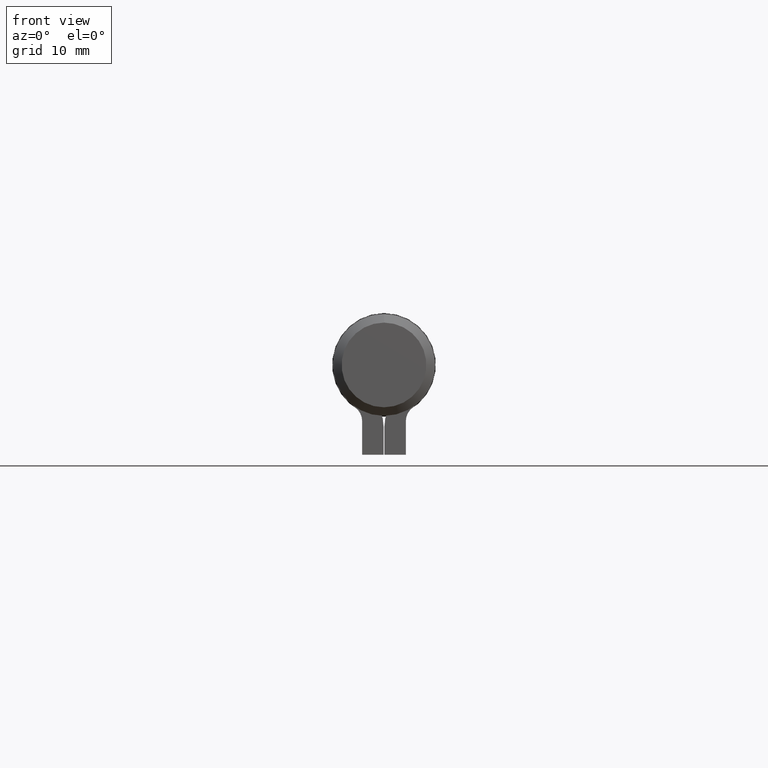
[diagram: clean part render]
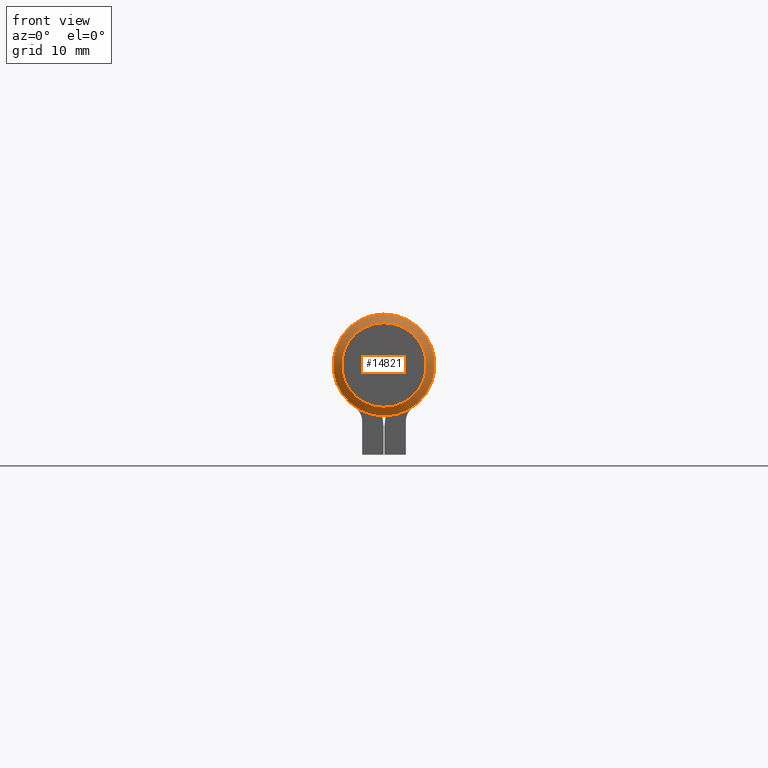
[diagram: same view with one face highlighted and labeled with its STEP entity id]
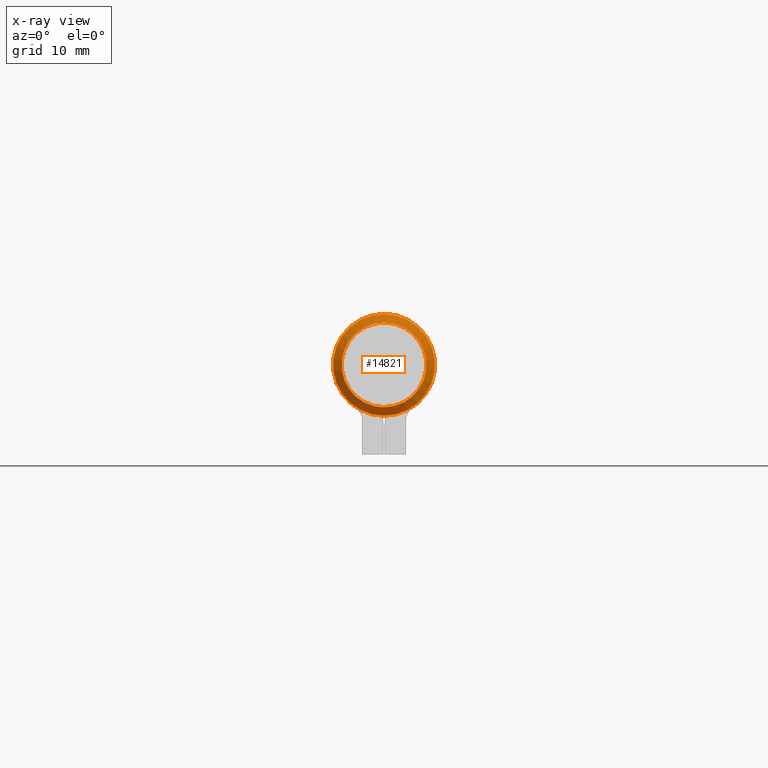
[diagram: x-ray of the same camera — body ghosted, the highlighted face saturated]
A machine part, front view. The second image highlights one B-rep face of the part: STEP entity #14821.
The next image is the same camera in x-ray: the body ghosted, the highlighted face saturated — about 0% of this face is hidden behind the body in this view.
In plain terms, the highlighted conical surface has half-angle 45 deg.
Its self-contained STEP definition (entity closure, byte-faithful):
#915 = AXIS2_PLACEMENT_3D ( 'NONE', #12622, #3371, #11343 ) ;
#1296 = ORIENTED_EDGE ( 'NONE', *, *, #10390, .F. ) ;
#1304 = FACE_OUTER_BOUND ( 'NONE', #11021, .T. ) ;
#1649 = CARTESIAN_POINT ( 'NONE',  ( 6.938893903907228378E-15, -40.49999999999998579, 5.950000000000000178 ) ) ;
#2955 = DIRECTION ( 'NONE',  ( -0.000000000000000000, 1.000000000000000000, -0.000000000000000000 ) ) ;
#3371 = DIRECTION ( 'NONE',  ( 0.000000000000000000, -1.000000000000000000, 0.000000000000000000 ) ) ;
#3419 = EDGE_CURVE ( 'NONE', #12698, #12698, #10553, .T. ) ;
#3432 = CIRCLE ( 'NONE', #13967, 5.950000000000000178 ) ;
#3727 = CONICAL_SURFACE ( 'NONE', #9454, 5.950000000000000178, 0.7853981633974533860 ) ;
#4819 = VERTEX_POINT ( 'NONE', #1649 ) ;
#5296 = DIRECTION ( 'NONE',  ( 0.000000000000000000, 0.000000000000000000, 1.000000000000000000 ) ) ;
#6523 = CARTESIAN_POINT ( 'NONE',  ( 6.938893903907228378E-15, -41.50000000000000000, 4.949999999999975309 ) ) ;
#8515 = ORIENTED_EDGE ( 'NONE', *, *, #3419, .F. ) ;
#8740 = EDGE_LOOP ( 'NONE', ( #8515 ) ) ;
#9170 = DIRECTION ( 'NONE',  ( 0.000000000000000000, 0.000000000000000000, 1.000000000000000000 ) ) ;
#9454 = AXIS2_PLACEMENT_3D ( 'NONE', #9980, #2955, #5296 ) ;
#9980 = CARTESIAN_POINT ( 'NONE',  ( 6.938893903907228378E-15, -40.49999999999998579, 0.000000000000000000 ) ) ;
#10390 = EDGE_CURVE ( 'NONE', #4819, #4819, #3432, .T. ) ;
#10553 = CIRCLE ( 'NONE', #915, 4.949999999999975309 ) ;
#11021 = EDGE_LOOP ( 'NONE', ( #1296 ) ) ;
#11343 = DIRECTION ( 'NONE',  ( 0.000000000000000000, 0.000000000000000000, 1.000000000000000000 ) ) ;
#12622 = CARTESIAN_POINT ( 'NONE',  ( 6.938893903907228378E-15, -41.50000000000000000, 0.000000000000000000 ) ) ;
#12698 = VERTEX_POINT ( 'NONE', #6523 ) ;
#13242 = FACE_BOUND ( 'NONE', #8740, .T. ) ;
#13641 = CARTESIAN_POINT ( 'NONE',  ( 6.938893903907228378E-15, -40.49999999999998579, 0.000000000000000000 ) ) ;
#13791 = DIRECTION ( 'NONE',  ( -0.000000000000000000, 1.000000000000000000, -0.000000000000000000 ) ) ;
#13967 = AXIS2_PLACEMENT_3D ( 'NONE', #13641, #13791, #9170 ) ;
#14821 = ADVANCED_FACE ( 'NONE', ( #13242, #1304 ), #3727, .T. ) ;